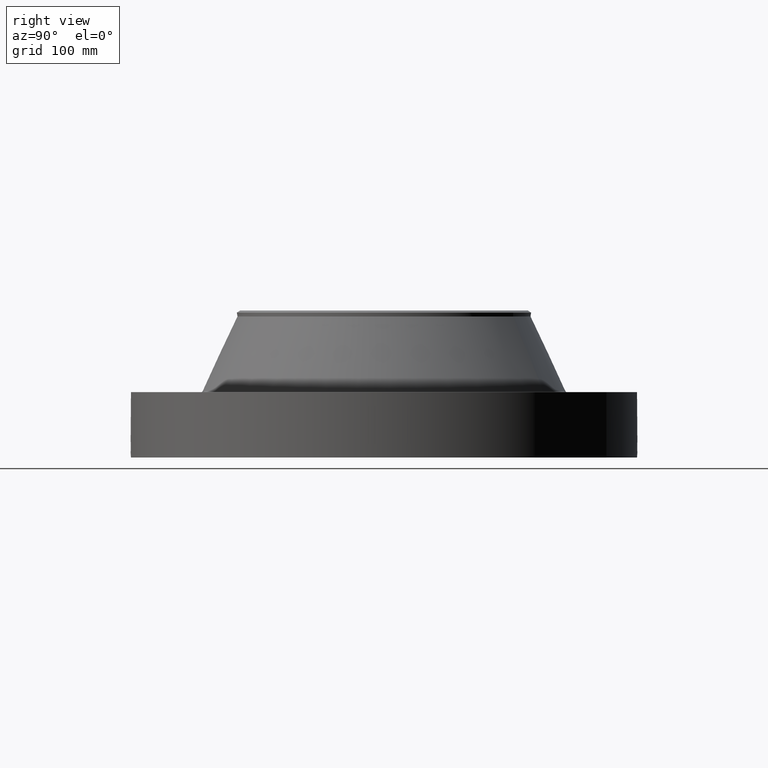
[diagram: clean part render]
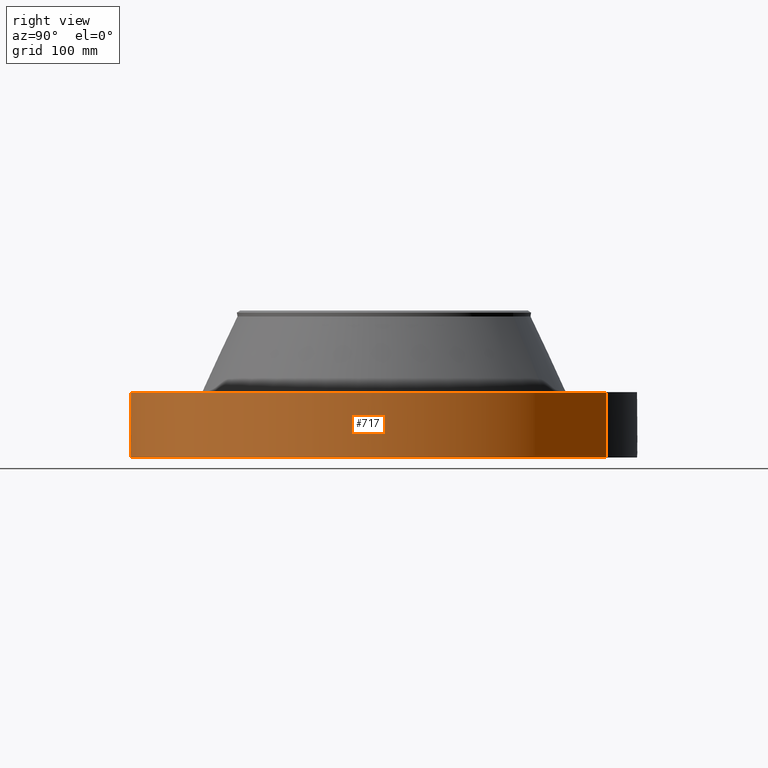
[diagram: same view with one face highlighted and labeled with its STEP entity id]
A machine part, right view. The second image highlights one B-rep face of the part: STEP entity #717.
In plain terms, the highlighted cylindrical surface (partial cylindrical patch) has radius 393.7 mm, axis along (0, 0, -1).
Its self-contained STEP definition (entity closure, byte-faithful):
#38=AXIS2_PLACEMENT_3D('Cylinder Axis2P3D',#35,#36,#37) ;
#169=AXIS2_PLACEMENT_3D('Circle Axis2P3D',#167,#168,$) ;
#621=AXIS2_PLACEMENT_3D('Circle Axis2P3D',#619,#620,$) ;
#35=CARTESIAN_POINT('Axis2P3D Location',(0.,0.,4.75000000002)) ;
#44=CARTESIAN_POINT('Vertex',(-7.43109584839,-13.6025297094,0.250000000001)) ;
#46=CARTESIAN_POINT('Vertex',(7.43109584839,13.6025297094,0.250000000001)) ;
#49=CARTESIAN_POINT('Line Origine',(-7.43109584839,-13.6025297094,2.25000000001)) ;
#53=CARTESIAN_POINT('Vertex',(-7.43109584839,-13.6025297094,4.25000000002)) ;
#60=CARTESIAN_POINT('Vertex',(7.43109584839,13.6025297094,4.25000000002)) ;
#63=CARTESIAN_POINT('Line Origine',(7.43109584839,13.6025297094,2.25000000001)) ;
#167=CARTESIAN_POINT('Axis2P3D Location',(0.,0.,0.250000000001)) ;
#619=CARTESIAN_POINT('Axis2P3D Location',(0.,0.,4.25000000002)) ;
#631=CARTESIAN_POINT('Control Point',(0.000716035976981,-15.4999999835,1.29411846132)) ;
#632=CARTESIAN_POINT('Control Point',(0.0189513544637,-15.4999991411,1.29408163339)) ;
#633=CARTESIAN_POINT('Control Point',(0.0371834900527,-15.4999658652,1.29263237184)) ;
#634=CARTESIAN_POINT('Control Point',(0.0551954079797,-15.4999017245,1.28978810279)) ;
#635=CARTESIAN_POINT('Vertex',(0.000715689072528,-15.4999999835,1.29411851058)) ;
#637=CARTESIAN_POINT('Vertex',(0.0551866331972,-15.4999020078,1.28978950648)) ;
#641=CARTESIAN_POINT('Control Point',(0.0551865381656,-15.4999017561,1.28978895984)) ;
#642=CARTESIAN_POINT('Control Point',(0.0956634609263,-15.4997576402,1.28538003789)) ;
#643=CARTESIAN_POINT('Control Point',(0.135505072626,-15.4994511414,1.27361031682)) ;
#644=CARTESIAN_POINT('Control Point',(0.172208486845,-15.499043333,1.2552561516)) ;
#645=CARTESIAN_POINT('Vertex',(0.172208486845,-15.499043333,1.2552561516)) ;
#649=CARTESIAN_POINT('Control Point',(0.0310323790944,-15.4999689352,0.531190572475)) ;
#650=CARTESIAN_POINT('Control Point',(0.0962147443961,-15.4998384341,0.539439149392)) ;
#651=CARTESIAN_POINT('Control Point',(0.159342611709,-15.4993694038,0.561294240917)) ;
#652=CARTESIAN_POINT('Control Point',(0.216471151687,-15.4986106127,0.596096648159)) ;
#653=CARTESIAN_POINT('Control Point',(0.288915811011,-15.4973689007,0.664188416399)) ;
#654=CARTESIAN_POINT('Control Point',(0.336544131534,-15.4963566666,0.748684191184)) ;
#655=CARTESIAN_POINT('Control Point',(0.349591216921,-15.4960623139,0.778744853352)) ;
#656=CARTESIAN_POINT('Control Point',(0.3718092962,-15.4955454003,0.848976849901)) ;
#657=CARTESIAN_POINT('Control Point',(0.37729754089,-15.4954059048,0.922143933866)) ;
#658=CARTESIAN_POINT('Control Point',(0.375031896068,-15.495462595,0.962946259221)) ;
#659=CARTESIAN_POINT('Control Point',(0.356609233706,-15.4959155882,1.06074175656)) ;
#660=CARTESIAN_POINT('Control Point',(0.308224982687,-15.4969791869,1.14796940997)) ;
#661=CARTESIAN_POINT('Control Point',(0.269878670875,-15.4977453412,1.19327204159)) ;
#662=CARTESIAN_POINT('Control Point',(0.223570654703,-15.4984726526,1.22957162248)) ;
#663=CARTESIAN_POINT('Control Point',(0.172208486845,-15.499043333,1.2552561516)) ;
#664=CARTESIAN_POINT('Vertex',(0.0310323790945,-15.4999689352,0.531190572475)) ;
#668=CARTESIAN_POINT('Control Point',(0.0310323790945,-15.4999689352,0.531190572475)) ;
#669=CARTESIAN_POINT('Control Point',(0.0206834093071,-15.4999896548,0.530874756027)) ;
#670=CARTESIAN_POINT('Control Point',(0.010326808527,-15.5000000019,0.530936298078)) ;
#671=CARTESIAN_POINT('Control Point',(-2.72878353617E-006,-15.5000000001,0.531374667806)) ;
#672=CARTESIAN_POINT('Vertex',(-2.72878354527E-006,-15.5000000001,0.531374667806)) ;
#676=CARTESIAN_POINT('Control Point',(-0.192610889666,-15.4988032134,0.587439234252)) ;
#677=CARTESIAN_POINT('Control Point',(-0.149000022304,-15.4993451861,0.562055690481)) ;
#678=CARTESIAN_POINT('Control Point',(-0.101115380365,-15.4997773578,0.543785163538)) ;
#679=CARTESIAN_POINT('Control Point',(-0.0508052332885,-15.4999999911,0.533530646343)) ;
#680=CARTESIAN_POINT('Control Point',(-2.72878354993E-006,-15.5000000001,0.531374667806)) ;
#681=CARTESIAN_POINT('Vertex',(-0.192610889666,-15.4988032134,0.587439234252)) ;
#685=CARTESIAN_POINT('Control Point',(-0.192610889666,-15.4988032134,0.587439234252)) ;
#686=CARTESIAN_POINT('Control Point',(-0.249429569875,-15.498097101,0.620510335519)) ;
#687=CARTESIAN_POINT('Control Point',(-0.299467782835,-15.4972148406,0.664899897753)) ;
#688=CARTESIAN_POINT('Control Point',(-0.33957912653,-15.4963190251,0.719041536429)) ;
#689=CARTESIAN_POINT('Control Point',(-0.383746903846,-15.4952584915,0.817252429394)) ;
#690=CARTESIAN_POINT('Control Point',(-0.392270646346,-15.495034134,0.922536354938)) ;
#691=CARTESIAN_POINT('Control Point',(-0.39013557735,-15.4950896723,0.962706758409)) ;
#692=CARTESIAN_POINT('Control Point',(-0.375947599782,-15.4954523248,1.03761773999)) ;
#693=CARTESIAN_POINT('Control Point',(-0.343799045543,-15.4961992285,1.10605227244)) ;
#694=CARTESIAN_POINT('Control Point',(-0.324715716687,-15.4966202525,1.13647425865)) ;
#695=CARTESIAN_POINT('Control Point',(-0.263013421624,-15.4978647737,1.21278734965)) ;
#696=CARTESIAN_POINT('Control Point',(-0.179959929793,-15.4991016752,1.26569223012)) ;
#697=CARTESIAN_POINT('Control Point',(-0.121273454329,-15.4997081071,1.28769128853)) ;
#698=CARTESIAN_POINT('Control Point',(-0.0601570437734,-15.5000001004,1.29710367323)) ;
#699=CARTESIAN_POINT('Control Point',(2.58579355567E-005,-15.5,1.2941529843)) ;
#700=CARTESIAN_POINT('Vertex',(2.58579355473E-005,-15.5,1.2941529843)) ;
#704=CARTESIAN_POINT('Control Point',(0.000715689062942,-15.4999999835,1.29411851056)) ;
#705=CARTESIAN_POINT('Control Point',(0.000370798054534,-15.4999999995,1.29413607236)) ;
#706=CARTESIAN_POINT('Control Point',(2.58579405425E-005,-15.5,1.2941529843)) ;
#36=DIRECTION('Axis2P3D Direction',(0.,0.,-0.0393700787402)) ;
#37=DIRECTION('Axis2P3D XDirection',(0.0188750212049,0.0345504945626,0.)) ;
#50=DIRECTION('Vector Direction',(0.,0.,-0.0393700787402)) ;
#64=DIRECTION('Vector Direction',(0.,0.,-0.0393700787402)) ;
#168=DIRECTION('Axis2P3D Direction',(0.,0.,-0.0393700787402)) ;
#620=DIRECTION('Axis2P3D Direction',(0.,0.,-0.0393700787402)) ;
#51=VECTOR('Line Direction',#50,0.0393700787402) ;
#65=VECTOR('Line Direction',#64,0.0393700787402) ;
#625=ORIENTED_EDGE('',*,*,#171,.F.) ;
#626=ORIENTED_EDGE('',*,*,#67,.T.) ;
#627=ORIENTED_EDGE('',*,*,#623,.T.) ;
#628=ORIENTED_EDGE('',*,*,#55,.F.) ;
#709=ORIENTED_EDGE('',*,*,#639,.T.) ;
#710=ORIENTED_EDGE('',*,*,#647,.T.) ;
#711=ORIENTED_EDGE('',*,*,#666,.F.) ;
#712=ORIENTED_EDGE('',*,*,#674,.T.) ;
#713=ORIENTED_EDGE('',*,*,#683,.F.) ;
#714=ORIENTED_EDGE('',*,*,#702,.T.) ;
#715=ORIENTED_EDGE('',*,*,#707,.F.) ;
#716=FACE_BOUND('',#708,.T.) ;
#717=ADVANCED_FACE('PartBody',(#629,#716),#39,.T.) ;
#630=B_SPLINE_CURVE_WITH_KNOTS('',3,(#631,#632,#633,#634),.UNSPECIFIED.,.F.,.U.,(4,4),(34.6166187602,36.6396542105),.UNSPECIFIED.) ;
#640=B_SPLINE_CURVE_WITH_KNOTS('',3,(#641,#642,#643,#644),.UNSPECIFIED.,.F.,.U.,(4,4),(0.,4.57505213139),.UNSPECIFIED.) ;
#648=B_SPLINE_CURVE_WITH_KNOTS('',5,(#649,#650,#651,#652,#653,#654,#655,#656,#657,#658,#659,#660,#661,#662,#663),.UNSPECIFIED.,.F.,.U.,(6,3,3,3,6),(0.,11.4182832276,17.2583175858,24.6133078001,35.2837322438),.UNSPECIFIED.) ;
#667=B_SPLINE_CURVE_WITH_KNOTS('',3,(#668,#669,#670,#671),.UNSPECIFIED.,.F.,.U.,(4,4),(0.,1.07955746268),.UNSPECIFIED.) ;
#675=B_SPLINE_CURVE_WITH_KNOTS('',4,(#676,#677,#678,#679,#680),.UNSPECIFIED.,.F.,.U.,(5,5),(0.,7.07927452264),.UNSPECIFIED.) ;
#684=B_SPLINE_CURVE_WITH_KNOTS('',5,(#685,#686,#687,#688,#689,#690,#691,#692,#693,#694,#695,#696,#697,#698,#699),.UNSPECIFIED.,.F.,.U.,(6,3,3,3,6),(0.,11.5290940159,18.6104401474,25.0339241464,36.2833576443),.UNSPECIFIED.) ;
#703=B_SPLINE_CURVE_WITH_KNOTS('',2,(#704,#705,#706),.UNSPECIFIED.,.F.,.U.,(3,3),(1.02129691838,1.0470875062),.UNSPECIFIED.) ;
#170=CIRCLE('generated circle',#169,15.5000000001) ;
#622=CIRCLE('generated circle',#621,15.5000000001) ;
#39=CYLINDRICAL_SURFACE('generated cylinder',#38,15.5000000001) ;
#55=EDGE_CURVE('',#45,#54,#52,.F.) ;
#67=EDGE_CURVE('',#47,#61,#66,.F.) ;
#171=EDGE_CURVE('',#47,#45,#170,.T.) ;
#623=EDGE_CURVE('',#61,#54,#622,.T.) ;
#639=EDGE_CURVE('',#636,#638,#630,.T.) ;
#647=EDGE_CURVE('',#638,#646,#640,.T.) ;
#666=EDGE_CURVE('',#665,#646,#648,.T.) ;
#674=EDGE_CURVE('',#665,#673,#667,.T.) ;
#683=EDGE_CURVE('',#682,#673,#675,.T.) ;
#702=EDGE_CURVE('',#682,#701,#684,.T.) ;
#707=EDGE_CURVE('',#636,#701,#703,.T.) ;
#624=EDGE_LOOP('',(#625,#626,#627,#628)) ;
#708=EDGE_LOOP('',(#709,#710,#711,#712,#713,#714,#715)) ;
#629=FACE_OUTER_BOUND('',#624,.T.) ;
#52=LINE('Line',#49,#51) ;
#66=LINE('Line',#63,#65) ;
#45=VERTEX_POINT('',#44) ;
#47=VERTEX_POINT('',#46) ;
#54=VERTEX_POINT('',#53) ;
#61=VERTEX_POINT('',#60) ;
#636=VERTEX_POINT('',#635) ;
#638=VERTEX_POINT('',#637) ;
#646=VERTEX_POINT('',#645) ;
#665=VERTEX_POINT('',#664) ;
#673=VERTEX_POINT('',#672) ;
#682=VERTEX_POINT('',#681) ;
#701=VERTEX_POINT('',#700) ;